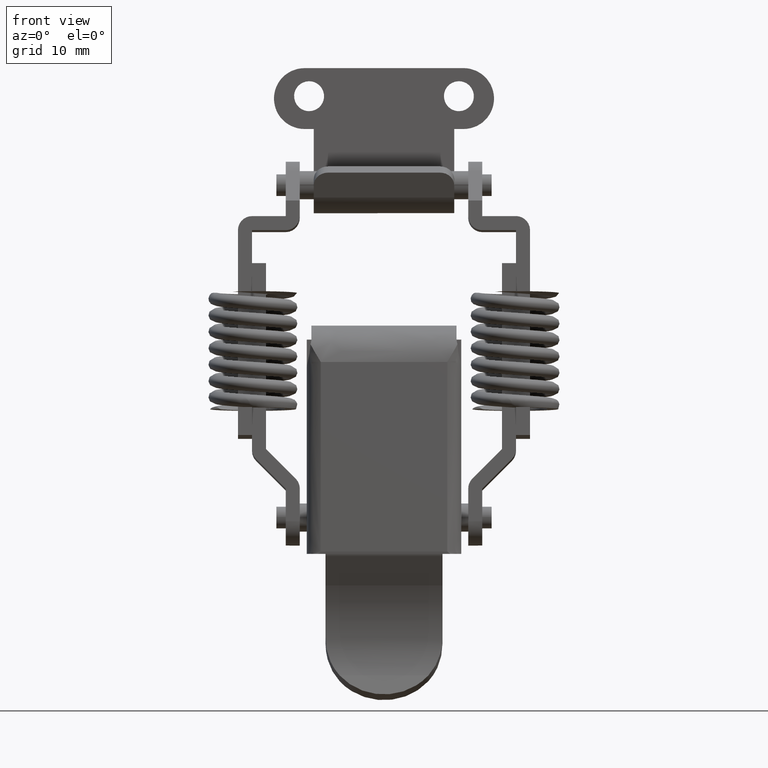
[diagram: clean part render]
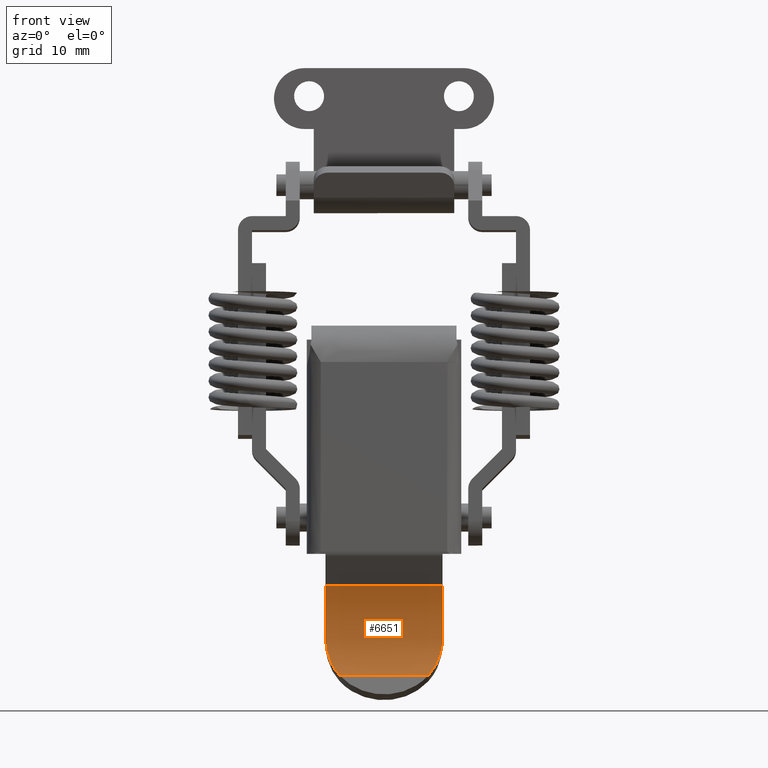
[diagram: same view with one face highlighted and labeled with its STEP entity id]
A machine part, front view. The second image highlights one B-rep face of the part: STEP entity #6651.
In plain terms, the highlighted face is a freeform B-spline surface patch.
Its self-contained STEP definition (entity closure, byte-faithful):
#6183=CARTESIAN_POINT('',(-5.501011604489611,-6.250000000000000,-48.234433830531003));
#6184=VERTEX_POINT('',#6183);
#6190=CARTESIAN_POINT('',(-6.243652855076600,-4.745124387591890,-52.359457472181397));
#6191=VERTEX_POINT('',#6190);
#6192=CARTESIAN_POINT('',(-6.243652855076600,-4.745124387591890,-52.359457472181397));
#6193=CARTESIAN_POINT('',(-6.138140227374223,-4.995036690142725,-52.087270265320839));
#6194=CARTESIAN_POINT('',(-6.036797876674831,-5.213887972051890,-51.793794497540809));
#6195=CARTESIAN_POINT('',(-5.898142116468762,-5.497753903374333,-51.320889197875843));
#6196=CARTESIAN_POINT('',(-5.854146584673925,-5.584930835263980,-51.157778627391231));
#6197=CARTESIAN_POINT('',(-5.792413893904330,-5.704430865646114,-50.904554375825647));
#6198=CARTESIAN_POINT('',(-5.772494007872330,-5.742483892725933,-50.818468609579732));
#6199=CARTESIAN_POINT('',(-5.734528126928064,-5.814241725561110,-50.644701714425167));
#6200=CARTESIAN_POINT('',(-5.716498596991562,-5.847919198193169,-50.557129363335150));
#6201=CARTESIAN_POINT('',(-5.631307746422531,-6.005658556533904,-50.115887801217603));
#6202=CARTESIAN_POINT('',(-5.578997465447004,-6.097983850119395,-49.752134344799153));
#6203=CARTESIAN_POINT('',(-5.536545268453689,-6.174518577646359,-49.284435526070013));
#6204=CARTESIAN_POINT('',(-5.529203186629541,-6.187869585209972,-49.190242070618183));
#6205=CARTESIAN_POINT('',(-5.516902661039717,-6.210699771824257,-49.000545905951192));
#6206=CARTESIAN_POINT('',(-5.511944007685891,-6.220181185741201,-48.904933080915470));
#6207=CARTESIAN_POINT('',(-5.500837603672435,-6.242728715937346,-48.618186864492749));
#6208=CARTESIAN_POINT('',(-5.498406077305202,-6.249999999999999,-48.426540137467903));
#6209=CARTESIAN_POINT('',(-5.501011604489611,-6.250000000000000,-48.234433830531003));
#6210=B_SPLINE_CURVE_WITH_KNOTS('',3,(#6192,#6193,#6194,#6195,#6196,#6197,#6198,#6199,#6200,#6201,#6202,#6203,#6204,#6205,#6206,#6207,#6208,#6209),.UNSPECIFIED.,.F.,.U.,(4,2,2,2,2,2,2,2,4),(0.0,0.249999999999997,0.374999999999996,0.437499999999995,0.499999999999994,0.749999999999995,0.812499999999996,0.874999999999997,1.0),.UNSPECIFIED.);
#6211=EDGE_CURVE('',#6191,#6184,#6210,.T.);
#6213=CARTESIAN_POINT('',(-6.243652855076600,4.745124387591890,-52.359457472181397));
#6214=VERTEX_POINT('',#6213);
#6230=CARTESIAN_POINT('',(-5.501011604489611,6.250000000000000,-48.234433830531003));
#6231=VERTEX_POINT('',#6230);
#6232=CARTESIAN_POINT('',(-5.501011604489611,6.250000000000000,-48.234433830531003));
#6233=CARTESIAN_POINT('',(-5.495801709266753,6.249999999999999,-48.618560980222718));
#6234=CARTESIAN_POINT('',(-5.510746992231500,6.221055202409754,-48.997177146501109));
#6235=CARTESIAN_POINT('',(-5.561102117427320,6.130233635530576,-49.556450479302192));
#6236=CARTESIAN_POINT('',(-5.582552063629364,6.092026560173498,-49.741427946303467));
#6237=CARTESIAN_POINT('',(-5.621495145826783,6.021951852471922,-50.016620520533330));
#6238=CARTESIAN_POINT('',(-5.635641527847321,5.996395767559595,-50.108188956905337));
#6239=CARTESIAN_POINT('',(-5.665978474180586,5.941160677815424,-50.289505084913827));
#6240=CARTESIAN_POINT('',(-5.682115554718430,5.911579213814041,-50.378972872532948));
#6241=CARTESIAN_POINT('',(-5.767287145286910,5.753893439639728,-50.820468052161772));
#6242=CARTESIAN_POINT('',(-5.849751052045130,5.596651947590112,-51.155067432088202));
#6243=CARTESIAN_POINT('',(-5.965478879016339,5.359937867364741,-51.550734627409341));
#6244=CARTESIAN_POINT('',(-5.989258069927408,5.310574277116554,-51.628732522729521));
#6245=CARTESIAN_POINT('',(-6.037953337116808,5.207719481695063,-51.782447521909852));
#6246=CARTESIAN_POINT('',(-6.062919115031897,5.154118253092764,-51.858306352967773));
#6247=CARTESIAN_POINT('',(-6.138852807775112,4.987991587012563,-52.081077570277309));
#6248=CARTESIAN_POINT('',(-6.190875086444421,4.870131355663705,-52.223308522608782));
#6249=CARTESIAN_POINT('',(-6.243652855076600,4.745124387591901,-52.359457472181397));
#6250=B_SPLINE_CURVE_WITH_KNOTS('',3,(#6232,#6233,#6234,#6235,#6236,#6237,#6238,#6239,#6240,#6241,#6242,#6243,#6244,#6245,#6246,#6247,#6248,#6249),.UNSPECIFIED.,.F.,.U.,(4,2,2,2,2,2,2,2,4),(0.0,0.250000000000004,0.375000000000005,0.437500000000004,0.500000000000003,0.749999999999997,0.812499999999998,0.874999999999998,1.0),.UNSPECIFIED.);
#6251=EDGE_CURVE('',#6231,#6214,#6250,.T.);
#6467=CARTESIAN_POINT('',(-7.046180629810901,6.250000000000000,-42.759974948038398));
#6468=VERTEX_POINT('',#6467);
#6469=CARTESIAN_POINT('',(-5.501011604489468,6.250000000000000,-48.234433830531003));
#6470=CARTESIAN_POINT('',(-5.540941207383585,6.250000000000000,-45.290412138740734));
#6471=CARTESIAN_POINT('',(-7.046180629810805,6.250000000000000,-42.759974948038341));
#6479=(BOUNDED_CURVE()B_SPLINE_CURVE(2,(#6469,#6470,#6471),.UNSPECIFIED.,.F.,.U.)CURVE()GEOMETRIC_REPRESENTATION_ITEM()QUASI_UNIFORM_CURVE()RATIONAL_B_SPLINE_CURVE((1.0,0.965994918782605,1.0))REPRESENTATION_ITEM(''));
#6480=EDGE_CURVE('',#6231,#6468,#6479,.T.);
#6507=CARTESIAN_POINT('',(-7.046180629810901,-6.250000000000000,-42.759974948038398));
#6508=VERTEX_POINT('',#6507);
#6509=CARTESIAN_POINT('',(-5.501011604489468,-6.250000000000000,-48.234433830531003));
#6510=CARTESIAN_POINT('',(-5.540941207383585,-6.250000000000000,-45.290412138740734));
#6511=CARTESIAN_POINT('',(-7.046180629810805,-6.250000000000000,-42.759974948038341));
#6519=(BOUNDED_CURVE()B_SPLINE_CURVE(2,(#6509,#6510,#6511),.UNSPECIFIED.,.F.,.U.)CURVE()GEOMETRIC_REPRESENTATION_ITEM()QUASI_UNIFORM_CURVE()RATIONAL_B_SPLINE_CURVE((1.0,0.965994918782605,1.0))REPRESENTATION_ITEM(''));
#6520=EDGE_CURVE('',#6184,#6508,#6519,.T.);
#6617=CARTESIAN_POINT('',(-6.243652855076600,-4.745124387591890,-52.359457472181397));
#6618=CARTESIAN_POINT('',(-6.243652855076600,4.745124387591890,-52.359457472181397));
#6619=QUASI_UNIFORM_CURVE('',1,(#6617,#6618),.UNSPECIFIED.,.F.,.U.);
#6620=EDGE_CURVE('',#6191,#6214,#6619,.T.);
#6625=CARTESIAN_POINT('',(-6.356053189011107,-6.562500000000001,-52.638062299425293));
#6626=CARTESIAN_POINT('',(-6.356053189011107,6.570312500000001,-52.638062299425293));
#6627=CARTESIAN_POINT('',(-4.093507087156845,-6.562500000000002,-47.243440574726272));
#6628=CARTESIAN_POINT('',(-4.093507087156845,6.570312500000001,-47.243440574726272));
#6629=CARTESIAN_POINT('',(-7.301395513154819,-6.562500000000000,-42.351558497043015));
#6630=CARTESIAN_POINT('',(-7.301395513154819,6.570312500000001,-42.351558497043015));
#6638=(BOUNDED_SURFACE()B_SPLINE_SURFACE(1,2,((#6625,#6627,#6629),(#6626,#6628,#6630)),.UNSPECIFIED.,.F.,.F.,.U.)B_SPLINE_SURFACE_WITH_KNOTS((2,2),(3,3),(0.0,13.132812500000000),(0.0,10.972154434884080),.UNSPECIFIED.)GEOMETRIC_REPRESENTATION_ITEM()RATIONAL_B_SPLINE_SURFACE(((1.0,0.879094110870772,0.991370545575825),(1.0,0.879094110870772,0.991370545575825)))REPRESENTATION_ITEM('')SURFACE());
#6639=ORIENTED_EDGE('',*,*,#6620,.F.);
#6640=ORIENTED_EDGE('',*,*,#6211,.T.);
#6641=ORIENTED_EDGE('',*,*,#6520,.T.);
#6642=CARTESIAN_POINT('',(-7.046180629810901,-6.250000000000000,-42.759974948038398));
#6643=CARTESIAN_POINT('',(-7.046180629810901,6.250000000000000,-42.759974948038398));
#6644=QUASI_UNIFORM_CURVE('',1,(#6642,#6643),.UNSPECIFIED.,.F.,.U.);
#6645=EDGE_CURVE('',#6508,#6468,#6644,.T.);
#6646=ORIENTED_EDGE('',*,*,#6645,.T.);
#6647=ORIENTED_EDGE('',*,*,#6480,.F.);
#6648=ORIENTED_EDGE('',*,*,#6251,.T.);
#6649=EDGE_LOOP('',(#6639,#6640,#6641,#6646,#6647,#6648));
#6650=FACE_OUTER_BOUND('',#6649,.T.);
#6651=ADVANCED_FACE('',(#6650),#6638,.F.);